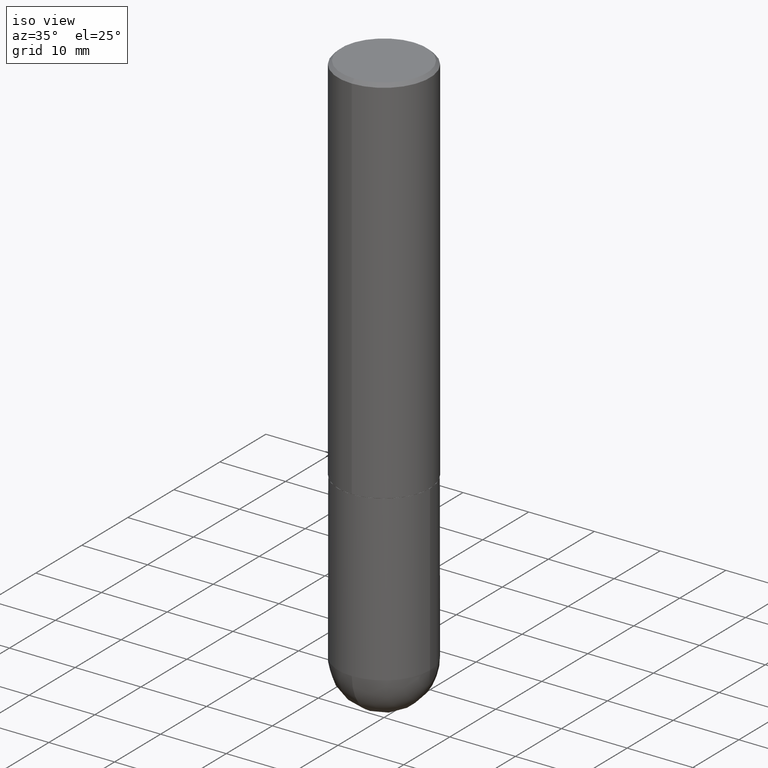
[diagram: clean part render]
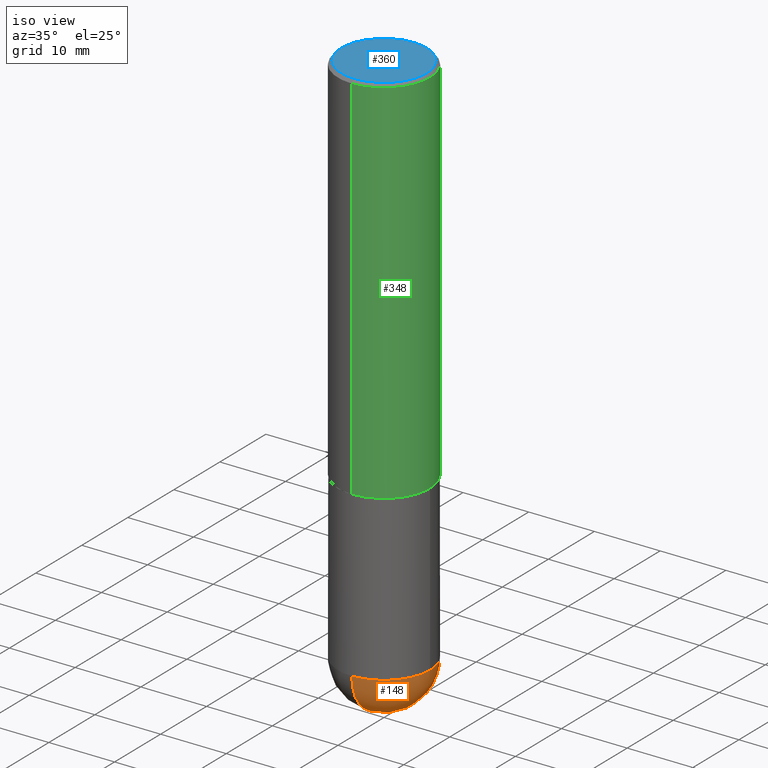
[diagram: same view with three faces highlighted in distinct colors, each labeled with its STEP entity id]
A machine part, iso view with three faces highlighted in distinct colors.
Their STEP definitions:

[orange] entity #148 — the highlighted spherical surface has radius 7.0002 mm.
#1 = CARTESIAN_POINT ( 'NONE',  ( 7.563587169093589749E-29, -1.174573157432737594E-14, -3.228299999999999503 ) ) ;
#28 = DIRECTION ( 'NONE',  ( -2.445468806185136597E-29, 3.491481338843145583E-15, 1.000000000000000000 ) ) ;
#60 = VERTEX_POINT ( 'NONE', #309 ) ;
#91 = AXIS2_PLACEMENT_3D ( 'NONE', #306, #28, #364 ) ;
#93 = ORIENTED_EDGE ( 'NONE', *, *, #223, .T. ) ;
#127 = CARTESIAN_POINT ( 'NONE',  ( 8.249342563543106087E-29, -1.269110819842029813E-14, -3.503899999999999793 ) ) ;
#133 = DIRECTION ( 'NONE',  ( -1.000000000000000000, 7.105427357601001070E-15, -4.926315508542082329E-29 ) ) ;
#145 = DIRECTION ( 'NONE',  ( 6.982962677686265922E-15, 1.000000000000000000, 0.000000000000000000 ) ) ;
#148 = ADVANCED_FACE ( 'NONE', ( #280 ), #410, .T. ) ;
#168 = CARTESIAN_POINT ( 'NONE',  ( 7.563587169093589749E-29, -1.174573157432737594E-14, -3.228299999999999503 ) ) ;
#174 = EDGE_CURVE ( 'NONE', #274, #60, #285, .T. ) ;
#180 = CARTESIAN_POINT ( 'NONE',  ( 1.924504513970413840E-15, 0.2755999999999887429, -3.228300000000000836 ) ) ;
#211 = CARTESIAN_POINT ( 'NONE',  ( 7.894706947007475996E-29, -1.127154920618732565E-14, -3.228299999999999503 ) ) ;
#223 = EDGE_CURVE ( 'NONE', #274, #411, #343, .T. ) ;
#231 = VERTEX_POINT ( 'NONE', #359 ) ;
#245 = AXIS2_PLACEMENT_3D ( 'NONE', #211, #338, #367 ) ;
#257 = DIRECTION ( 'NONE',  ( -7.105427357601001859E-15, -1.000000000000000000, 0.000000000000000000 ) ) ;
#274 = VERTEX_POINT ( 'NONE', #127 ) ;
#280 = FACE_OUTER_BOUND ( 'NONE', #281, .T. ) ;
#281 = EDGE_LOOP ( 'NONE', ( #404, #93, #349, #323 ) ) ;
#283 = DIRECTION ( 'NONE',  ( -1.000000000000000000, 6.982962677686265922E-15, -4.883557194083112340E-29 ) ) ;
#285 = CIRCLE ( 'NONE', #335, 0.2756000000000003447 ) ;
#286 = AXIS2_PLACEMENT_3D ( 'NONE', #296, #300, #145 ) ;
#296 = CARTESIAN_POINT ( 'NONE',  ( 7.563587169093589749E-29, -1.174573157432737594E-14, -3.228299999999999503 ) ) ;
#300 = DIRECTION ( 'NONE',  ( 1.000000000000000000, -6.982962677686265922E-15, 4.883557194083112340E-29 ) ) ;
#306 = CARTESIAN_POINT ( 'NONE',  ( 7.894706947007475996E-29, -1.127154920618732565E-14, -3.228299999999999503 ) ) ;
#309 = CARTESIAN_POINT ( 'NONE',  ( -1.958255779754759675E-15, -0.2756000000000117245, -3.228299999999998615 ) ) ;
#323 = ORIENTED_EDGE ( 'NONE', *, *, #331, .F. ) ;
#331 = EDGE_CURVE ( 'NONE', #60, #231, #400, .T. ) ;
#335 = AXIS2_PLACEMENT_3D ( 'NONE', #1, #133, #257 ) ;
#338 = DIRECTION ( 'NONE',  ( -2.445468806185136597E-29, 3.491481338843145583E-15, 1.000000000000000000 ) ) ;
#343 = CIRCLE ( 'NONE', #286, 0.2756000000000003447 ) ;
#349 = ORIENTED_EDGE ( 'NONE', *, *, #382, .F. ) ;
#352 = DIRECTION ( 'NONE',  ( 6.982962677686265922E-15, 1.000000000000000000, -3.964946289788475374E-15 ) ) ;
#355 = AXIS2_PLACEMENT_3D ( 'NONE', #168, #283, #352 ) ;
#359 = CARTESIAN_POINT ( 'NONE',  ( 0.2756000000000000671, -1.147789575331294974E-14, -3.228299999999999503 ) ) ;
#364 = DIRECTION ( 'NONE',  ( 1.000000000000000000, -6.982962677686264344E-15, 0.000000000000000000 ) ) ;
#367 = DIRECTION ( 'NONE',  ( 1.000000000000000000, -6.982962677686264344E-15, 0.000000000000000000 ) ) ;
#374 = CIRCLE ( 'NONE', #91, 0.2756000000000000671 ) ;
#382 = EDGE_CURVE ( 'NONE', #231, #411, #374, .T. ) ;
#400 = CIRCLE ( 'NONE', #245, 0.2756000000000000671 ) ;
#404 = ORIENTED_EDGE ( 'NONE', *, *, #174, .F. ) ;
#410 = SPHERICAL_SURFACE ( 'NONE', #355, 0.2756000000000003447 ) ;
#411 = VERTEX_POINT ( 'NONE', #180 ) ;

[blue] entity #360 — the highlighted planar face has unit normal (0, -0, -1).
#16 = DIRECTION ( 'NONE',  ( -6.982962677686265922E-15, -1.000000000000000000, 3.490259422812399316E-15 ) ) ;
#25 = CARTESIAN_POINT ( 'NONE',  ( 1.784845260416607569E-15, 0.2555999999999997163, -7.727481196167660743E-16 ) ) ;
#33 = CARTESIAN_POINT ( 'NONE',  ( -1.822148268208117593E-15, -0.2555999999999997163, 1.130834686179012597E-15 ) ) ;
#44 = EDGE_LOOP ( 'NONE', ( #329, #215 ) ) ;
#49 = CIRCLE ( 'NONE', #144, 0.2555999999999997163 ) ;
#58 = CARTESIAN_POINT ( 'NONE',  ( -5.839967127814690847E-45, 8.332100087509464764E-31, 2.387243777081642336E-16 ) ) ;
#67 = CIRCLE ( 'NONE', #351, 0.2555999999999997163 ) ;
#96 = VERTEX_POINT ( 'NONE', #386 ) ;
#121 = DIRECTION ( 'NONE',  ( -6.982962677686265922E-15, -1.000000000000000000, 3.490259422812399316E-15 ) ) ;
#122 = VERTEX_POINT ( 'NONE', #33 ) ;
#144 = AXIS2_PLACEMENT_3D ( 'NONE', #327, #297, #16 ) ;
#187 = PLANE ( 'NONE',  #391 ) ;
#215 = ORIENTED_EDGE ( 'NONE', *, *, #255, .T. ) ;
#255 = EDGE_CURVE ( 'NONE', #122, #96, #49, .T. ) ;
#265 = FACE_OUTER_BOUND ( 'NONE', #44, .T. ) ;
#297 = DIRECTION ( 'NONE',  ( -2.446322065588933505E-29, 3.490259422812398922E-15, 1.000000000000000000 ) ) ;
#327 = CARTESIAN_POINT ( 'NONE',  ( -5.839967127814690847E-45, 8.332100087509464764E-31, 2.387243777081642336E-16 ) ) ;
#328 = DIRECTION ( 'NONE',  ( -2.446322065588933505E-29, 3.490259422812398922E-15, 1.000000000000000000 ) ) ;
#329 = ORIENTED_EDGE ( 'NONE', *, *, #340, .T. ) ;
#340 = EDGE_CURVE ( 'NONE', #96, #122, #67, .T. ) ;
#351 = AXIS2_PLACEMENT_3D ( 'NONE', #58, #328, #121 ) ;
#360 = ADVANCED_FACE ( 'NONE', ( #265 ), #187, .F. ) ;
#386 = CARTESIAN_POINT ( 'NONE',  ( 1.854674887193471656E-15, 0.2555999999999997163, -6.533859307626841301E-16 ) ) ;
#391 = AXIS2_PLACEMENT_3D ( 'NONE', #25, #405, #398 ) ;
#398 = DIRECTION ( 'NONE',  ( 6.982962677686265922E-15, 1.000000000000000000, -3.490259422812398922E-15 ) ) ;
#405 = DIRECTION ( 'NONE',  ( 2.446322065588933225E-29, -3.490259422812398922E-15, -1.000000000000000000 ) ) ;

[green] entity #348 — the highlighted cylindrical surface (partial cylindrical patch) has radius 7.0002 mm, axis along (-0, 0, 1).
#9 = DIRECTION ( 'NONE',  ( -2.446322065588933505E-29, 3.490259422812398922E-15, 1.000000000000000000 ) ) ;
#10 = VERTEX_POINT ( 'NONE', #219 ) ;
#18 = CARTESIAN_POINT ( 'NONE',  ( 0.000000000000000000, 0.000000000000000000, 0.000000000000000000 ) ) ;
#24 = VERTEX_POINT ( 'NONE', #246 ) ;
#26 = CARTESIAN_POINT ( 'NONE',  ( 4.892644131177882669E-31, -6.980518845624820179E-17, -0.02000000000000006287 ) ) ;
#32 = ORIENTED_EDGE ( 'NONE', *, *, #100, .T. ) ;
#42 = EDGE_LOOP ( 'NONE', ( #32, #131, #271, #111 ) ) ;
#50 = CARTESIAN_POINT ( 'NONE',  ( -1.924504513970282100E-15, -0.2756000000000080608, -2.243099999999998317 ) ) ;
#62 = EDGE_CURVE ( 'NONE', #164, #10, #325, .T. ) ;
#90 = CYLINDRICAL_SURFACE ( 'NONE', #192, 0.2756000000000001227 ) ;
#100 = EDGE_CURVE ( 'NONE', #217, #24, #191, .T. ) ;
#111 = ORIENTED_EDGE ( 'NONE', *, *, #239, .F. ) ;
#130 = CARTESIAN_POINT ( 'NONE',  ( 5.487345025322535087E-29, -7.829000911310490294E-15, -2.243099999999999206 ) ) ;
#131 = ORIENTED_EDGE ( 'NONE', *, *, #155, .T. ) ;
#141 = DIRECTION ( 'NONE',  ( -2.446322065588933785E-29, 3.490259422812398922E-15, 1.000000000000000000 ) ) ;
#155 = EDGE_CURVE ( 'NONE', #24, #10, #198, .T. ) ;
#159 = DIRECTION ( 'NONE',  ( -2.446322065588933505E-29, 3.490259422812398922E-15, 1.000000000000000000 ) ) ;
#164 = VERTEX_POINT ( 'NONE', #389 ) ;
#176 = VECTOR ( 'NONE', #356, 39.37007874015748143 ) ;
#191 = CIRCLE ( 'NONE', #298, 0.2756000000000002892 ) ;
#192 = AXIS2_PLACEMENT_3D ( 'NONE', #18, #403, #268 ) ;
#198 = LINE ( 'NONE', #324, #241 ) ;
#217 = VERTEX_POINT ( 'NONE', #50 ) ;
#219 = CARTESIAN_POINT ( 'NONE',  ( 1.924504513970335348E-15, 0.2755999999999999006, -0.02000000000000102390 ) ) ;
#221 = FACE_OUTER_BOUND ( 'NONE', #42, .T. ) ;
#239 = EDGE_CURVE ( 'NONE', #217, #164, #240, .T. ) ;
#240 = LINE ( 'NONE', #392, #176 ) ;
#241 = VECTOR ( 'NONE', #141, 39.37007874015748143 ) ;
#246 = CARTESIAN_POINT ( 'NONE',  ( 1.958255779754864988E-15, 0.2755999999999924621, -2.243100000000000538 ) ) ;
#268 = DIRECTION ( 'NONE',  ( -6.982962677686265922E-15, -1.000000000000000000, 3.490259422812398922E-15 ) ) ;
#271 = ORIENTED_EDGE ( 'NONE', *, *, #62, .F. ) ;
#298 = AXIS2_PLACEMENT_3D ( 'NONE', #130, #9, #341 ) ;
#324 = CARTESIAN_POINT ( 'NONE',  ( 1.958255779754836589E-15, 0.2756000000000001227, -9.619154969270975392E-16 ) ) ;
#325 = CIRCLE ( 'NONE', #381, 0.2756000000000000116 ) ;
#341 = DIRECTION ( 'NONE',  ( -6.982962677686265922E-15, -1.000000000000000000, 3.964946289788476952E-15 ) ) ;
#348 = ADVANCED_FACE ( 'NONE', ( #221 ), #90, .T. ) ;
#356 = DIRECTION ( 'NONE',  ( -2.446322065588933785E-29, 3.490259422812398922E-15, 1.000000000000000000 ) ) ;
#381 = AXIS2_PLACEMENT_3D ( 'NONE', #26, #159, #406 ) ;
#389 = CARTESIAN_POINT ( 'NONE',  ( -1.890753248185833319E-15, -0.2756000000000000671, -0.01999999999999910530 ) ) ;
#392 = CARTESIAN_POINT ( 'NONE',  ( -1.924504513970335743E-15, -0.2756000000000001227, 9.619154969270975392E-16 ) ) ;
#403 = DIRECTION ( 'NONE',  ( -2.446322065588933505E-29, 3.490259422812398922E-15, 1.000000000000000000 ) ) ;
#406 = DIRECTION ( 'NONE',  ( -6.982962677686265922E-15, -1.000000000000000000, 3.484816075009406388E-15 ) ) ;